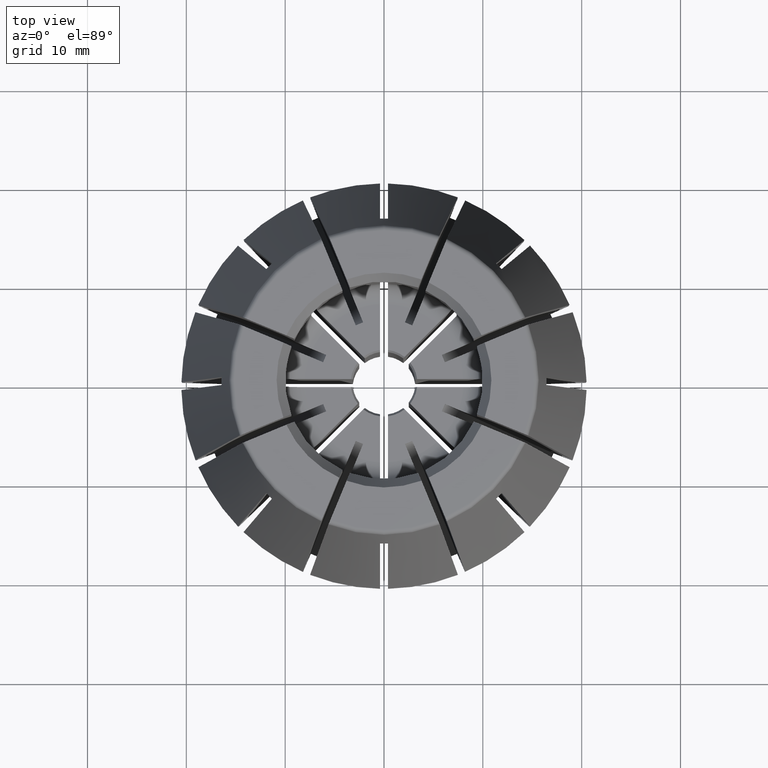
[diagram: clean part render]
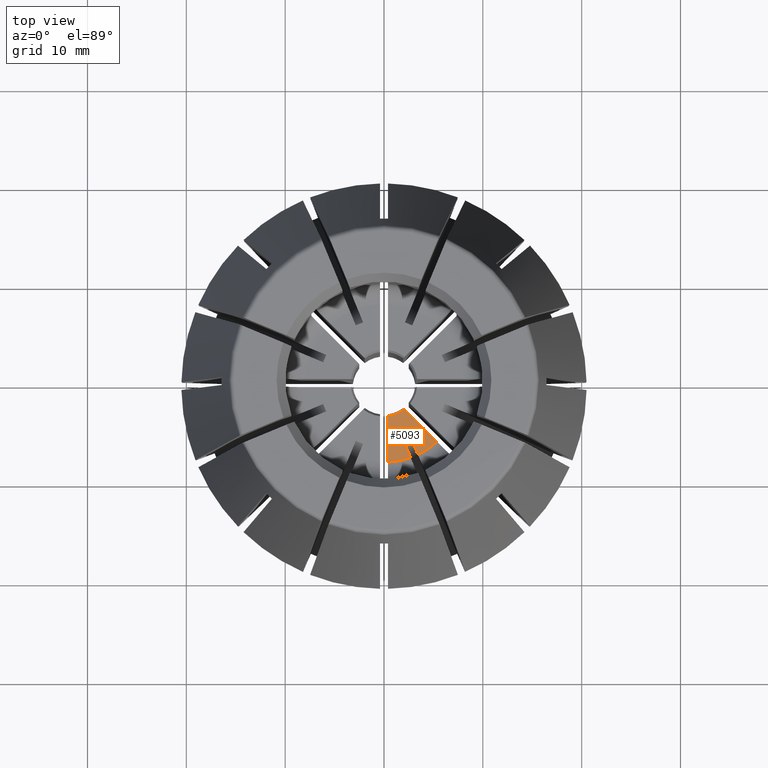
[diagram: same view with one face highlighted and labeled with its STEP entity id]
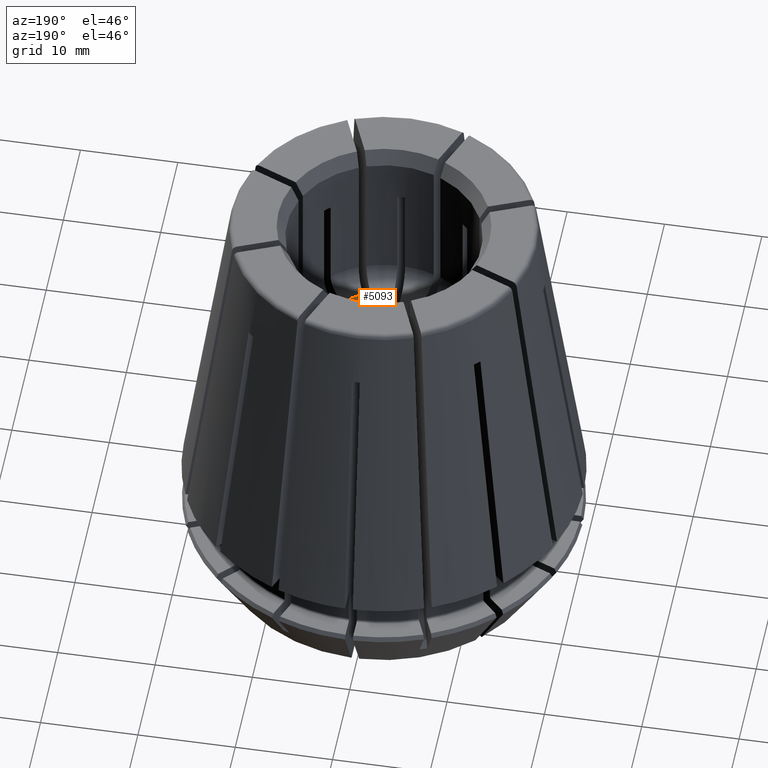
[diagram: same view with one face highlighted and labeled with its STEP entity id]
A machine part, top view. The second image highlights one B-rep face of the part: STEP entity #5093.
A second angle (auxiliary view) of the same face is appended — the face is thin or edge-on in the first view.
In plain terms, the highlighted planar face has unit normal (0, 0, -1).
Its self-contained STEP definition (entity closure, byte-faithful):
#96=PLANE('',#5617);
#228=LINE('',#8114,#524);
#230=LINE('',#8123,#526);
#360=LINE('',#9037,#656);
#369=LINE('',#9067,#665);
#381=LINE('',#9120,#677);
#524=VECTOR('',#6219,1000.);
#526=VECTOR('',#6223,1000.);
#656=VECTOR('',#6739,1000.);
#665=VECTOR('',#6752,1000.);
#677=VECTOR('',#6770,1000.);
#853=CIRCLE('',#5247,3.375);
#1051=CIRCLE('',#5618,8.);
#1052=CIRCLE('',#5619,8.);
#2301=ORIENTED_EDGE('',*,*,#3354,.F.);
#2302=ORIENTED_EDGE('',*,*,#3450,.T.);
#2303=ORIENTED_EDGE('',*,*,#3366,.T.);
#2304=ORIENTED_EDGE('',*,*,#3033,.T.);
#2305=ORIENTED_EDGE('',*,*,#3030,.F.);
#2306=ORIENTED_EDGE('',*,*,#3451,.T.);
#2307=ORIENTED_EDGE('',*,*,#3385,.T.);
#2308=ORIENTED_EDGE('',*,*,#2791,.F.);
#2791=EDGE_CURVE('',#3592,#3594,#853,.T.);
#3030=EDGE_CURVE('',#3799,#3800,#228,.T.);
#3033=EDGE_CURVE('',#3802,#3800,#230,.T.);
#3354=EDGE_CURVE('',#3999,#3592,#360,.T.);
#3366=EDGE_CURVE('',#4006,#3802,#369,.T.);
#3385=EDGE_CURVE('',#4018,#3594,#381,.T.);
#3450=EDGE_CURVE('',#3999,#4006,#1051,.T.);
#3451=EDGE_CURVE('',#3799,#4018,#1052,.T.);
#3592=VERTEX_POINT('',#7412);
#3594=VERTEX_POINT('',#7415);
#3799=VERTEX_POINT('',#8113);
#3800=VERTEX_POINT('',#8115);
#3802=VERTEX_POINT('',#8124);
#3999=VERTEX_POINT('',#9036);
#4006=VERTEX_POINT('',#9068);
#4018=VERTEX_POINT('',#9121);
#4477=EDGE_LOOP('',(#2301,#2302,#2303,#2304,#2305,#2306,#2307,#2308));
#4749=FACE_BOUND('',#4477,.T.);
#5093=ADVANCED_FACE('',(#4749),#96,.F.);
#5247=AXIS2_PLACEMENT_3D('',#7414,#5877,#5878);
#5617=AXIS2_PLACEMENT_3D('',#9299,#6895,#6896);
#5618=AXIS2_PLACEMENT_3D('',#9300,#6897,#6898);
#5619=AXIS2_PLACEMENT_3D('',#9301,#6899,#6900);
#5877=DIRECTION('',(0.,0.,1.));
#5878=DIRECTION('',(1.,0.,0.));
#6219=DIRECTION('',(-0.38268343236509,0.923879532511287,0.));
#6223=DIRECTION('',(0.923879532511287,0.38268343236509,0.));
#6739=DIRECTION('',(-1.22464679914735E-16,1.,0.));
#6752=DIRECTION('',(-0.38268343236509,0.923879532511287,0.));
#6770=DIRECTION('',(-0.707106781186548,0.707106781186548,0.));
#6895=DIRECTION('',(0.,0.,-1.));
#6896=DIRECTION('',(-1.,0.,0.));
#6897=DIRECTION('',(0.,0.,1.));
#6898=DIRECTION('',(1.,0.,0.));
#6899=DIRECTION('',(0.,0.,1.));
#6900=DIRECTION('',(1.,0.,0.));
#7412=CARTESIAN_POINT('',(0.4,-3.35121246715274,28.2));
#7414=CARTESIAN_POINT('',(0.,0.,28.2));
#7415=CARTESIAN_POINT('',(2.08682234824599,-2.65250777319523,28.2));
#8113=CARTESIAN_POINT('',(3.42719004283575,-7.22871831034295,28.2));
#8114=CARTESIAN_POINT('',(-2.45887531174168,6.98150049769222,28.2));
#8115=CARTESIAN_POINT('',(2.8569941233776,-5.85214358837733,28.2));
#8123=CARTESIAN_POINT('',(2.11789049736857,-6.1582903342694,28.2));
#8124=CARTESIAN_POINT('',(2.11789049736857,-6.1582903342694,28.2));
#9036=CARTESIAN_POINT('',(0.399999999999997,-7.98999374217527,28.2));
#9037=CARTESIAN_POINT('',(0.399999999999996,8.,28.2));
#9067=CARTESIAN_POINT('',(-3.19797893775071,6.67535375180015,28.2));
#9068=CARTESIAN_POINT('',(2.68808641682668,-7.53486505623504,28.2));
#9120=CARTESIAN_POINT('',(-4.28284271247462,3.71715728752537,28.2));
#9121=CARTESIAN_POINT('',(5.36693604425558,-5.93262146920485,28.2));
#9299=CARTESIAN_POINT('',(0.,8.,28.2));
#9300=CARTESIAN_POINT('',(0.,0.,28.2));
#9301=CARTESIAN_POINT('',(0.,0.,28.2));